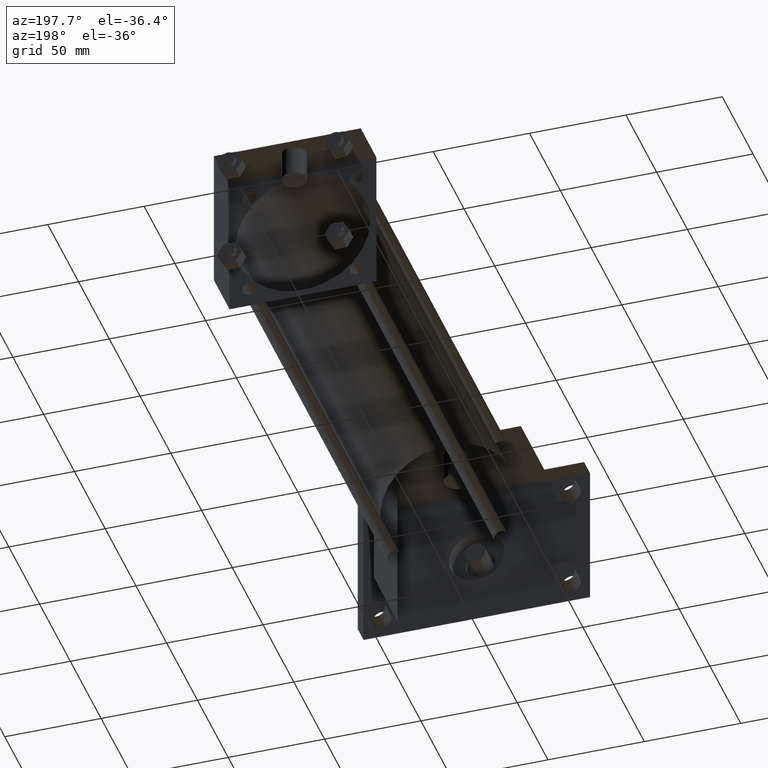
[diagram: clean part render]
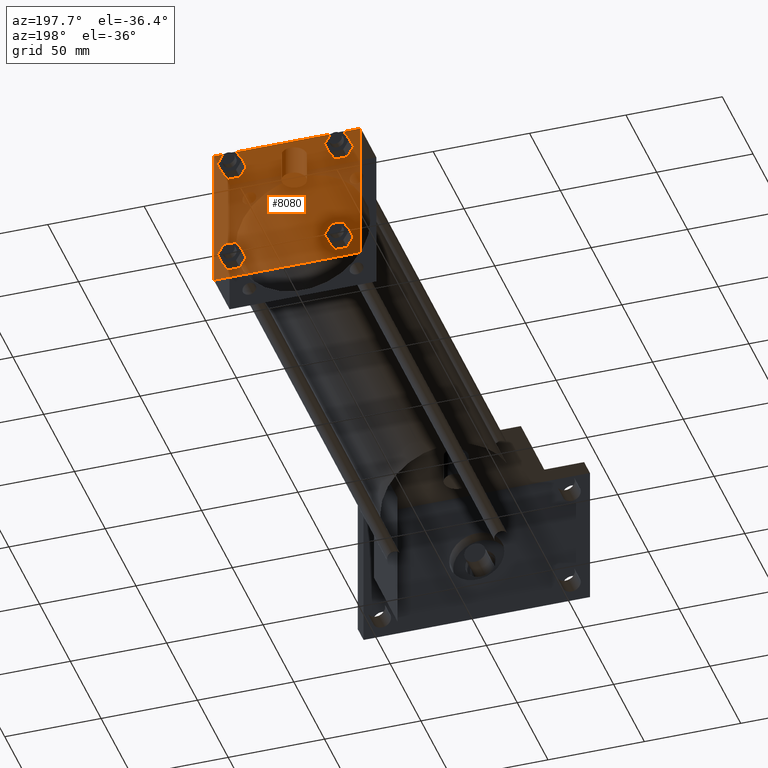
[diagram: same view with one face highlighted and labeled with its STEP entity id]
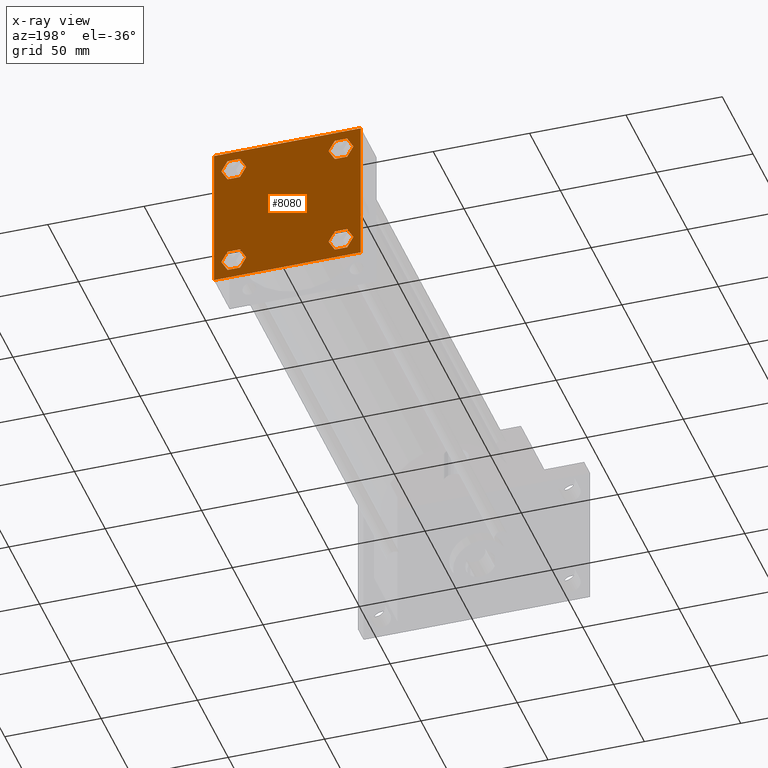
[diagram: x-ray of the same camera — body ghosted, the highlighted face saturated]
A machine part, auxiliary view. The second image highlights one B-rep face of the part: STEP entity #8080.
The next image is the same camera in x-ray: the body ghosted, the highlighted face saturated — about 0% of this face is hidden behind the body in this view.
In plain terms, the highlighted planar face has unit normal (0, 1, 0).
Its self-contained STEP definition (entity closure, byte-faithful):
#2129=FACE_OUTER_BOUND('',#2134,.T.);
#2130=FACE_BOUND('',#2135,.T.);
#2131=FACE_BOUND('',#2136,.T.);
#2132=FACE_BOUND('',#2137,.T.);
#2133=FACE_BOUND('',#2138,.T.);
#2134=EDGE_LOOP('',(#2139,#2140,#2141,#2142,#2143,#2144));
#2135=EDGE_LOOP('',(#2187,#2188,#2189,#2190,#2191,#2192));
#2136=EDGE_LOOP('',(#2235,#2236,#2237,#2238));
#2137=EDGE_LOOP('',(#2267,#2268,#2269,#2270,#2271,#2272));
#2138=EDGE_LOOP('',(#2315,#2316,#2317,#2318,#2319,#2320));
#2139=ORIENTED_EDGE('',*,*,#2145,.T.);
#2140=ORIENTED_EDGE('',*,*,#2154,.T.);
#2141=ORIENTED_EDGE('',*,*,#2161,.T.);
#2142=ORIENTED_EDGE('',*,*,#2168,.T.);
#2143=ORIENTED_EDGE('',*,*,#2175,.T.);
#2144=ORIENTED_EDGE('',*,*,#2182,.T.);
#2145=EDGE_CURVE('',#2150,#2151,#2146,.T.);
#2146=LINE('',#2147,#2148);
#2147=CARTESIAN_POINT('',(-3.102090653E+001,3.238500000E+002,3.336924574E+001));
#2148=VECTOR('',#2149,1.0E+000);
#2149=DIRECTION('',(-5.0E-001,0.0E+000,-8.66025403784439E-001));
#2150=VERTEX_POINT('',#2152);
#2151=VERTEX_POINT('',#2153);
#2152=CARTESIAN_POINT('',(-3.102090653E+001,3.238500000E+002,3.336924574E+001));
#2153=CARTESIAN_POINT('',(-3.422880323E+001,3.238500000E+002,2.781300000E+001));
#2154=EDGE_CURVE('',#2151,#2159,#2155,.T.);
#2155=LINE('',#2156,#2157);
#2156=CARTESIAN_POINT('',(-3.422880323E+001,3.238500000E+002,2.781300000E+001));
#2157=VECTOR('',#2158,1.0E+000);
#2158=DIRECTION('',(5.0E-001,0.0E+000,-8.66025403784439E-001));
#2159=VERTEX_POINT('',#2160);
#2160=CARTESIAN_POINT('',(-3.102090653E+001,3.238500000E+002,2.225675426E+001));
#2161=EDGE_CURVE('',#2159,#2166,#2162,.T.);
#2162=LINE('',#2163,#2164);
#2163=CARTESIAN_POINT('',(-3.102090653E+001,3.238500000E+002,2.225675426E+001));
#2164=VECTOR('',#2165,1.0E+000);
#2165=DIRECTION('',(1.0E+000,0.0E+000,0.0E+000));
#2166=VERTEX_POINT('',#2167);
#2167=CARTESIAN_POINT('',(-2.460509347E+001,3.238500000E+002,2.225675426E+001));
#2168=EDGE_CURVE('',#2166,#2173,#2169,.T.);
#2169=LINE('',#2170,#2171);
#2170=CARTESIAN_POINT('',(-2.460509347E+001,3.238500000E+002,2.225675426E+001));
#2171=VECTOR('',#2172,1.0E+000);
#2172=DIRECTION('',(5.0E-001,0.0E+000,8.66025403784439E-001));
#2173=VERTEX_POINT('',#2174);
#2174=CARTESIAN_POINT('',(-2.139719677E+001,3.238500000E+002,2.781300000E+001));
#2175=EDGE_CURVE('',#2173,#2180,#2176,.T.);
#2176=LINE('',#2177,#2178);
#2177=CARTESIAN_POINT('',(-2.139719677E+001,3.238500000E+002,2.781300000E+001));
#2178=VECTOR('',#2179,1.0E+000);
#2179=DIRECTION('',(-5.0E-001,0.0E+000,8.66025403784439E-001));
#2180=VERTEX_POINT('',#2181);
#2181=CARTESIAN_POINT('',(-2.460509347E+001,3.238500000E+002,3.336924574E+001));
#2182=EDGE_CURVE('',#2180,#2150,#2183,.T.);
#2183=LINE('',#2184,#2185);
#2184=CARTESIAN_POINT('',(-2.460509347E+001,3.238500000E+002,3.336924574E+001));
#2185=VECTOR('',#2186,1.0E+000);
#2186=DIRECTION('',(-1.0E+000,0.0E+000,0.0E+000));
#2187=ORIENTED_EDGE('',*,*,#2193,.T.);
#2188=ORIENTED_EDGE('',*,*,#2202,.T.);
#2189=ORIENTED_EDGE('',*,*,#2209,.T.);
#2190=ORIENTED_EDGE('',*,*,#2216,.T.);
#2191=ORIENTED_EDGE('',*,*,#2223,.T.);
#2192=ORIENTED_EDGE('',*,*,#2230,.T.);
#2193=EDGE_CURVE('',#2198,#2199,#2194,.T.);
#2194=LINE('',#2195,#2196);
#2195=CARTESIAN_POINT('',(2.460509347E+001,3.238500000E+002,-2.225675426E+001));
#2196=VECTOR('',#2197,1.0E+000);
#2197=DIRECTION('',(-5.0E-001,0.0E+000,-8.66025403784439E-001));
#2198=VERTEX_POINT('',#2200);
#2199=VERTEX_POINT('',#2201);
#2200=CARTESIAN_POINT('',(2.460509347E+001,3.238500000E+002,-2.225675426E+001));
#2201=CARTESIAN_POINT('',(2.139719677E+001,3.238500000E+002,-2.781300000E+001));
#2202=EDGE_CURVE('',#2199,#2207,#2203,.T.);
#2203=LINE('',#2204,#2205);
#2204=CARTESIAN_POINT('',(2.139719677E+001,3.238500000E+002,-2.781300000E+001));
#2205=VECTOR('',#2206,1.0E+000);
#2206=DIRECTION('',(5.0E-001,0.0E+000,-8.66025403784439E-001));
#2207=VERTEX_POINT('',#2208);
#2208=CARTESIAN_POINT('',(2.460509347E+001,3.238500000E+002,-3.336924574E+001));
#2209=EDGE_CURVE('',#2207,#2214,#2210,.T.);
#2210=LINE('',#2211,#2212);
#2211=CARTESIAN_POINT('',(2.460509347E+001,3.238500000E+002,-3.336924574E+001));
#2212=VECTOR('',#2213,1.0E+000);
#2213=DIRECTION('',(1.0E+000,0.0E+000,0.0E+000));
#2214=VERTEX_POINT('',#2215);
#2215=CARTESIAN_POINT('',(3.102090653E+001,3.238500000E+002,-3.336924574E+001));
#2216=EDGE_CURVE('',#2214,#2221,#2217,.T.);
#2217=LINE('',#2218,#2219);
#2218=CARTESIAN_POINT('',(3.102090653E+001,3.238500000E+002,-3.336924574E+001));
#2219=VECTOR('',#2220,1.0E+000);
#2220=DIRECTION('',(5.0E-001,0.0E+000,8.66025403784439E-001));
#2221=VERTEX_POINT('',#2222);
#2222=CARTESIAN_POINT('',(3.422880323E+001,3.238500000E+002,-2.781300000E+001));
#2223=EDGE_CURVE('',#2221,#2228,#2224,.T.);
#2224=LINE('',#2225,#2226);
#2225=CARTESIAN_POINT('',(3.422880323E+001,3.238500000E+002,-2.781300000E+001));
#2226=VECTOR('',#2227,1.0E+000);
#2227=DIRECTION('',(-5.0E-001,0.0E+000,8.66025403784439E-001));
#2228=VERTEX_POINT('',#2229);
#2229=CARTESIAN_POINT('',(3.102090653E+001,3.238500000E+002,-2.225675426E+001));
#2230=EDGE_CURVE('',#2228,#2198,#2231,.T.);
#2231=LINE('',#2232,#2233);
#2232=CARTESIAN_POINT('',(3.102090653E+001,3.238500000E+002,-2.225675426E+001));
#2233=VECTOR('',#2234,1.0E+000);
#2234=DIRECTION('',(-1.0E+000,0.0E+000,0.0E+000));
#2235=ORIENTED_EDGE('',*,*,#2239,.F.);
#2236=ORIENTED_EDGE('',*,*,#2248,.F.);
#2237=ORIENTED_EDGE('',*,*,#2255,.F.);
#2238=ORIENTED_EDGE('',*,*,#2262,.F.);
#2239=EDGE_CURVE('',#2244,#2245,#2240,.T.);
#2240=LINE('',#2241,#2242);
#2241=CARTESIAN_POINT('',(-3.810000000E+001,3.238500000E+002,-3.810000000E+001));
#2242=VECTOR('',#2243,1.0E+000);
#2243=DIRECTION('',(1.0E+000,0.0E+000,0.0E+000));
#2244=VERTEX_POINT('',#2246);
#2245=VERTEX_POINT('',#2247);
#2246=CARTESIAN_POINT('',(-3.810000000E+001,3.238500000E+002,-3.810000000E+001));
#2247=CARTESIAN_POINT('',(3.810000000E+001,3.238500000E+002,-3.810000000E+001));
#2248=EDGE_CURVE('',#2253,#2244,#2249,.T.);
#2249=LINE('',#2250,#2251);
#2250=CARTESIAN_POINT('',(-3.810000000E+001,3.238500000E+002,3.810000000E+001));
#2251=VECTOR('',#2252,1.0E+000);
#2252=DIRECTION('',(0.0E+000,0.0E+000,-1.0E+000));
#2253=VERTEX_POINT('',#2254);
#2254=CARTESIAN_POINT('',(-3.810000000E+001,3.238500000E+002,3.810000000E+001));
#2255=EDGE_CURVE('',#2260,#2253,#2256,.T.);
#2256=LINE('',#2257,#2258);
#2257=CARTESIAN_POINT('',(3.810000000E+001,3.238500000E+002,3.810000000E+001));
#2258=VECTOR('',#2259,1.0E+000);
#2259=DIRECTION('',(-1.0E+000,0.0E+000,0.0E+000));
#2260=VERTEX_POINT('',#2261);
#2261=CARTESIAN_POINT('',(3.810000000E+001,3.238500000E+002,3.810000000E+001));
#2262=EDGE_CURVE('',#2245,#2260,#2263,.T.);
#2263=LINE('',#2264,#2265);
#2264=CARTESIAN_POINT('',(3.810000000E+001,3.238500000E+002,-3.810000000E+001));
#2265=VECTOR('',#2266,1.0E+000);
#2266=DIRECTION('',(0.0E+000,0.0E+000,1.0E+000));
#2267=ORIENTED_EDGE('',*,*,#2273,.T.);
#2268=ORIENTED_EDGE('',*,*,#2282,.T.);
#2269=ORIENTED_EDGE('',*,*,#2289,.T.);
#2270=ORIENTED_EDGE('',*,*,#2296,.T.);
#2271=ORIENTED_EDGE('',*,*,#2303,.T.);
#2272=ORIENTED_EDGE('',*,*,#2310,.T.);
#2273=EDGE_CURVE('',#2278,#2279,#2274,.T.);
#2274=LINE('',#2275,#2276);
#2275=CARTESIAN_POINT('',(-3.102090653E+001,3.238500000E+002,-2.225675426E+001));
#2276=VECTOR('',#2277,1.0E+000);
#2277=DIRECTION('',(-5.0E-001,0.0E+000,-8.66025403784439E-001));
#2278=VERTEX_POINT('',#2280);
#2279=VERTEX_POINT('',#2281);
#2280=CARTESIAN_POINT('',(-3.102090653E+001,3.238500000E+002,-2.225675426E+001));
#2281=CARTESIAN_POINT('',(-3.422880323E+001,3.238500000E+002,-2.781300000E+001));
#2282=EDGE_CURVE('',#2279,#2287,#2283,.T.);
#2283=LINE('',#2284,#2285);
#2284=CARTESIAN_POINT('',(-3.422880323E+001,3.238500000E+002,-2.781300000E+001));
#2285=VECTOR('',#2286,1.0E+000);
#2286=DIRECTION('',(5.0E-001,0.0E+000,-8.66025403784439E-001));
#2287=VERTEX_POINT('',#2288);
#2288=CARTESIAN_POINT('',(-3.102090653E+001,3.238500000E+002,-3.336924574E+001));
#2289=EDGE_CURVE('',#2287,#2294,#2290,.T.);
#2290=LINE('',#2291,#2292);
#2291=CARTESIAN_POINT('',(-3.102090653E+001,3.238500000E+002,-3.336924574E+001));
#2292=VECTOR('',#2293,1.0E+000);
#2293=DIRECTION('',(1.0E+000,0.0E+000,0.0E+000));
#2294=VERTEX_POINT('',#2295);
#2295=CARTESIAN_POINT('',(-2.460509347E+001,3.238500000E+002,-3.336924574E+001));
#2296=EDGE_CURVE('',#2294,#2301,#2297,.T.);
#2297=LINE('',#2298,#2299);
#2298=CARTESIAN_POINT('',(-2.460509347E+001,3.238500000E+002,-3.336924574E+001));
#2299=VECTOR('',#2300,1.0E+000);
#2300=DIRECTION('',(5.0E-001,0.0E+000,8.66025403784439E-001));
#2301=VERTEX_POINT('',#2302);
#2302=CARTESIAN_POINT('',(-2.139719677E+001,3.238500000E+002,-2.781300000E+001));
#2303=EDGE_CURVE('',#2301,#2308,#2304,.T.);
#2304=LINE('',#2305,#2306);
#2305=CARTESIAN_POINT('',(-2.139719677E+001,3.238500000E+002,-2.781300000E+001));
#2306=VECTOR('',#2307,1.0E+000);
#2307=DIRECTION('',(-5.0E-001,0.0E+000,8.66025403784439E-001));
#2308=VERTEX_POINT('',#2309);
#2309=CARTESIAN_POINT('',(-2.460509347E+001,3.238500000E+002,-2.225675426E+001));
#2310=EDGE_CURVE('',#2308,#2278,#2311,.T.);
#2311=LINE('',#2312,#2313);
#2312=CARTESIAN_POINT('',(-2.460509347E+001,3.238500000E+002,-2.225675426E+001));
#2313=VECTOR('',#2314,1.0E+000);
#2314=DIRECTION('',(-1.0E+000,0.0E+000,0.0E+000));
#2315=ORIENTED_EDGE('',*,*,#2321,.T.);
#2316=ORIENTED_EDGE('',*,*,#2330,.T.);
#2317=ORIENTED_EDGE('',*,*,#2337,.T.);
#2318=ORIENTED_EDGE('',*,*,#2344,.T.);
#2319=ORIENTED_EDGE('',*,*,#2351,.T.);
#2320=ORIENTED_EDGE('',*,*,#2358,.T.);
#2321=EDGE_CURVE('',#2326,#2327,#2322,.T.);
#2322=LINE('',#2323,#2324);
#2323=CARTESIAN_POINT('',(2.460509347E+001,3.238500000E+002,3.336924574E+001));
#2324=VECTOR('',#2325,1.0E+000);
#2325=DIRECTION('',(-5.0E-001,0.0E+000,-8.66025403784439E-001));
#2326=VERTEX_POINT('',#2328);
#2327=VERTEX_POINT('',#2329);
#2328=CARTESIAN_POINT('',(2.460509347E+001,3.238500000E+002,3.336924574E+001));
#2329=CARTESIAN_POINT('',(2.139719677E+001,3.238500000E+002,2.781300000E+001));
#2330=EDGE_CURVE('',#2327,#2335,#2331,.T.);
#2331=LINE('',#2332,#2333);
#2332=CARTESIAN_POINT('',(2.139719677E+001,3.238500000E+002,2.781300000E+001));
#2333=VECTOR('',#2334,1.0E+000);
#2334=DIRECTION('',(5.0E-001,0.0E+000,-8.66025403784439E-001));
#2335=VERTEX_POINT('',#2336);
#2336=CARTESIAN_POINT('',(2.460509347E+001,3.238500000E+002,2.225675426E+001));
#2337=EDGE_CURVE('',#2335,#2342,#2338,.T.);
#2338=LINE('',#2339,#2340);
#2339=CARTESIAN_POINT('',(2.460509347E+001,3.238500000E+002,2.225675426E+001));
#2340=VECTOR('',#2341,1.0E+000);
#2341=DIRECTION('',(1.0E+000,0.0E+000,0.0E+000));
#2342=VERTEX_POINT('',#2343);
#2343=CARTESIAN_POINT('',(3.102090653E+001,3.238500000E+002,2.225675426E+001));
#2344=EDGE_CURVE('',#2342,#2349,#2345,.T.);
#2345=LINE('',#2346,#2347);
#2346=CARTESIAN_POINT('',(3.102090653E+001,3.238500000E+002,2.225675426E+001));
#2347=VECTOR('',#2348,1.0E+000);
#2348=DIRECTION('',(5.0E-001,0.0E+000,8.66025403784439E-001));
#2349=VERTEX_POINT('',#2350);
#2350=CARTESIAN_POINT('',(3.422880323E+001,3.238500000E+002,2.781300000E+001));
#2351=EDGE_CURVE('',#2349,#2356,#2352,.T.);
#2352=LINE('',#2353,#2354);
#2353=CARTESIAN_POINT('',(3.422880323E+001,3.238500000E+002,2.781300000E+001));
#2354=VECTOR('',#2355,1.0E+000);
#2355=DIRECTION('',(-5.0E-001,0.0E+000,8.66025403784439E-001));
#2356=VERTEX_POINT('',#2357);
#2357=CARTESIAN_POINT('',(3.102090653E+001,3.238500000E+002,3.336924574E+001));
#2358=EDGE_CURVE('',#2356,#2326,#2359,.T.);
#2359=LINE('',#2360,#2361);
#2360=CARTESIAN_POINT('',(3.102090653E+001,3.238500000E+002,3.336924574E+001));
#2361=VECTOR('',#2362,1.0E+000);
#2362=DIRECTION('',(-1.0E+000,0.0E+000,0.0E+000));
#2363=PLANE('',#2364);
#2364=AXIS2_PLACEMENT_3D('',#2365,#2366,#2367);
#2365=CARTESIAN_POINT('',(-3.810000000E+001,3.238500000E+002,-3.810000000E+001));
#2366=DIRECTION('',(0.0E+000,1.0E+000,0.0E+000));
#2367=DIRECTION('',(0.0E+000,0.0E+000,1.0E+000));
#8080=ADVANCED_FACE('',(#2129,#2130,#2131,#2132,#2133),#2363,.T.);